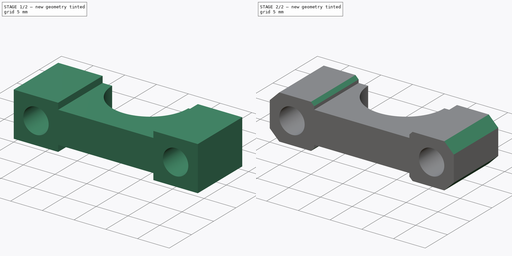
[diagram: build sequence overview — one tinted view per stage of 2, left to right]
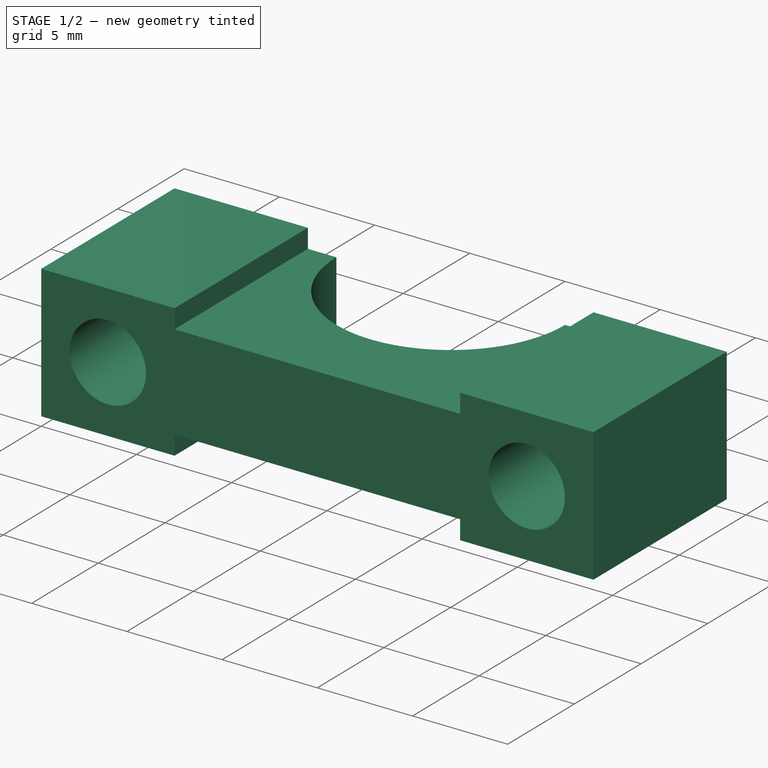
[diagram: stage 1 of 2 — iso view after this stage's code; geometry added in this stage tinted green]
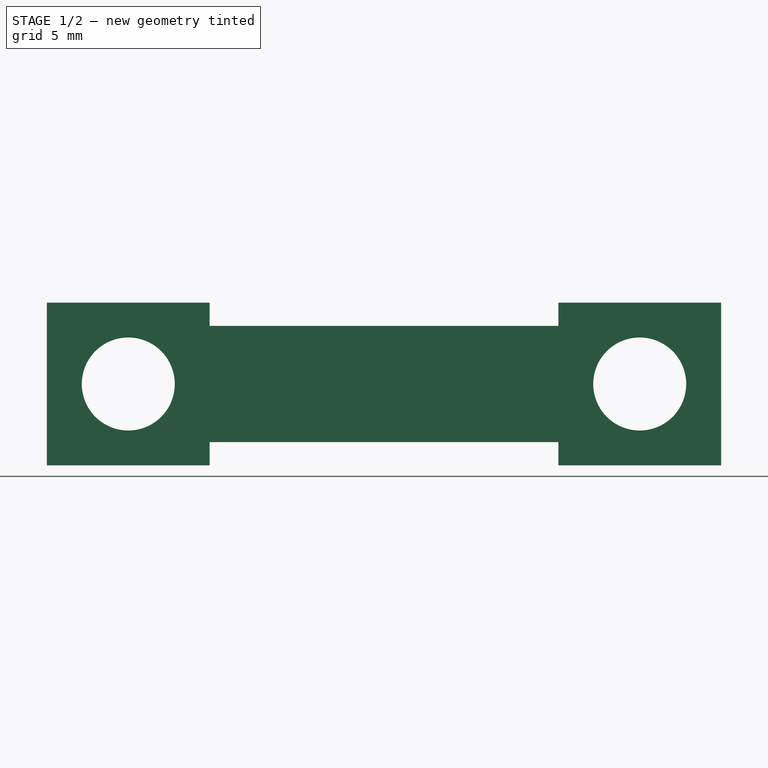
[diagram: stage 1 of 2 — front view after this stage's code; geometry added in this stage tinted green]
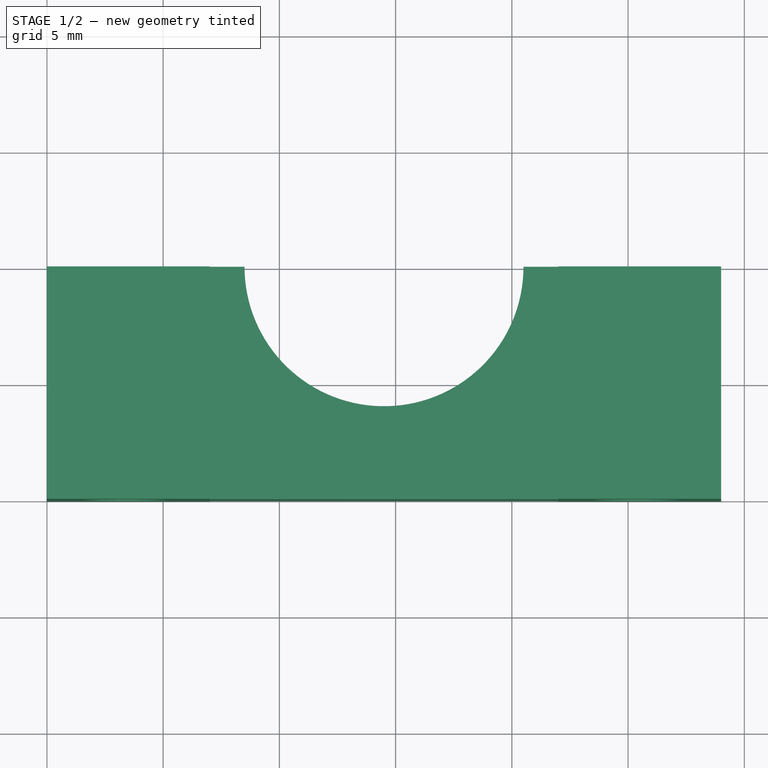
[diagram: stage 1 of 2 — top view after this stage's code; geometry added in this stage tinted green]
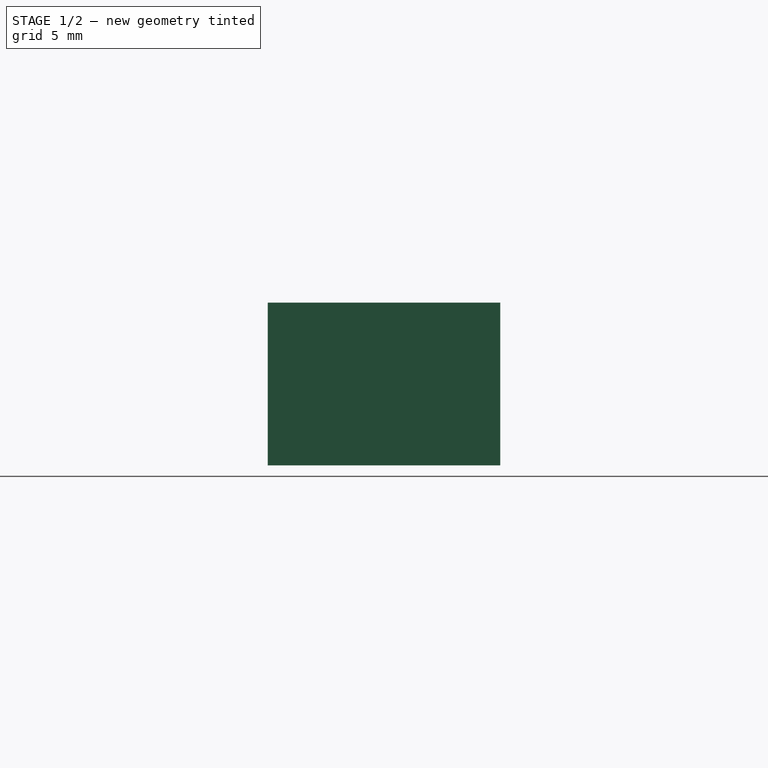
[diagram: stage 1 of 2 — right view after this stage's code; geometry added in this stage tinted green]
FCSTD DOCUMENT  (FreeCAD 0.18R14555 (Git shallow))
Label: top-bowden-mount
License: All rights reserved
LicenseURL: http://en.wikipedia.org/wiki/All_rights_reserved
objects: Sketcher::SketchObject×2, PartDesign::Chamfer×2, PartDesign::Pad×1, PartDesign::Pocket×1, PartDesign::Body×1
note: 9 computed .brp shape members not serialized (recipe doc carries the construction recipe); baked Part::Feature solids carry a one-line shape summary decoded from their .brp

FEATURE [Sketcher::SketchObject] Sketch
  MapMode = 5
  Placement = pos=(0,0,0) rot=(1,0,0;1.5708rad)
  Support = -> [XZ_Plane]
  sketch-geometry (22):
    g0: LineSegment StartX=0 StartY=7 StartZ=0 EndX=0 EndY=0 EndZ=0
    g1: LineSegment StartX=0 StartY=0 StartZ=0 EndX=7 EndY=0 EndZ=0
    g2: LineSegment StartX=7 StartY=0 StartZ=0 EndX=7 EndY=1 EndZ=0
    g3: LineSegment StartX=7 StartY=1 StartZ=0 EndX=22 EndY=1 EndZ=0
    g4: LineSegment StartX=22 StartY=1 StartZ=0 EndX=22 EndY=0 EndZ=0
    g5: LineSegment StartX=22 StartY=0 StartZ=0 EndX=29 EndY=0 EndZ=0
    g6: LineSegment StartX=29 StartY=0 StartZ=0 EndX=29 EndY=7 EndZ=0
    g7: LineSegment StartX=29 StartY=7 StartZ=0 EndX=22 EndY=7 EndZ=0
    g8: LineSegment StartX=22 StartY=7 StartZ=0 EndX=22 EndY=6 EndZ=0
    g9: LineSegment StartX=22 StartY=6 StartZ=0 EndX=7 EndY=6 EndZ=0
    g10: LineSegment StartX=7 StartY=6 StartZ=0 EndX=7 EndY=7 EndZ=0
    g11: LineSegment StartX=7 StartY=7 StartZ=0 EndX=0 EndY=7 EndZ=0
    g12: LineSegment [constr] StartX=7 StartY=7 StartZ=0 EndX=22 EndY=7 EndZ=0
    g13: LineSegment [constr] StartX=7 StartY=0 StartZ=0 EndX=22 EndY=0 EndZ=0
    g14: LineSegment [constr] StartX=22 StartY=1 StartZ=0 EndX=22 EndY=6 EndZ=0
    g15: LineSegment [constr] StartX=7 StartY=1 StartZ=0 EndX=7 EndY=6 EndZ=0
    g16: LineSegment [constr] StartX=0 StartY=7 StartZ=0 EndX=7 EndY=0 EndZ=0
    g17: LineSegment [constr] StartX=0 StartY=0 StartZ=0 EndX=7 EndY=7 EndZ=0
    g18: LineSegment [constr] StartX=22 StartY=7 StartZ=0 EndX=29 EndY=0 EndZ=0
    g19: LineSegment [constr] StartX=29 StartY=7 StartZ=0 EndX=22 EndY=0 EndZ=0
    g20: Circle CenterX=3.5 CenterY=3.5 CenterZ=0 NormalX=0 NormalY=0 NormalZ=1 AngleXU=0 Radius=2
    g21: Circle CenterX=25.5 CenterY=3.5 CenterZ=0 NormalX=0 NormalY=0 NormalZ=1 AngleXU=0 Radius=2
  constraints (57):
    c: Vertical(g0)
    c: Coincident(g0,g1)
    c: Horizontal(g1)
    c: Coincident(g1,g2)
    c: Vertical(g2)
    c: Coincident(g2,g3)
    c: Horizontal(g3)
    c: Coincident(g3,g4)
    c: Vertical(g4)
    c: Coincident(g4,g5)
    c: Horizontal(g5)
    c: Coincident(g5,g6)
    c: Vertical(g6)
    c: Coincident(g6,g7)
    c: Horizontal(g7)
    c: Coincident(g7,g8)
    c: Vertical(g8)
    c: Coincident(g8,g9)
    c: Horizontal(g9)
    c: Coincident(g9,g10)
    c: Vertical(g10)
    c: Coincident(g10,g11)
    c: Coincident(g11,g0)
    c: Horizontal(g11)
    c: Coincident(g12,g10)
    c: Coincident(g12,g7)
    c: Horizontal(g12)
    c: Coincident(g13,g1)
    c: Coincident(g13,g4)
    c: Horizontal(g13)
    c: Equal(g8,g4)
    c: Coincident(g14,g3)
    c: Coincident(g14,g8)
    c: Coincident(g15,g2)
    c: Coincident(g15,g9)
    c: Vertical(g15)
    c: Vertical(g14)
    c: Equal(g11,g7)
    c: Equal(g0,g11)
    c: DistanceY(g15,g15) = 5
    c: Coincident(g16,g0)
    c: Coincident(g16,g1)
    c: Coincident(g17,g0)
    c: Coincident(g17,g10)
    c: Coincident(g18,g7)
    c: Coincident(g19,g6)
    c: Coincident(g19,g4)
    c: Coincident(g18,g5)
    c: PointOnObject(g20,g16)
    c: PointOnObject(g21,g18)
    c: Equal(g21,g20)
    c: PointOnObject(g20,g17)
    c: PointOnObject(g21,g19)
    c: Radius(g20) = 2
    c: DistanceX(g20,g21) = 22
    c: DistanceX(g9,g9) = 15
    c: Coincident(g0,g-1)
FEATURE [PartDesign::Pad] Pad
  Length = 10
  Length2 = 100
  Placement = pos=(0,0,0) rot=(1,0,0;1.5708rad)
  Profile = -> Sketch
  Type = 0
FEATURE [Sketcher::SketchObject] Sketch001
  ExternalGeometry = -> [Pad]
  MapMode = 5
  Placement = pos=(0,4e-15,6) rot=(0,0,1;3.14159rad)
  Support = -> [Pad]
  sketch-geometry (4):
    g0: ArcOfCircle CenterX=-14.5 CenterY=0 CenterZ=0 NormalX=0 NormalY=0 NormalZ=1 AngleXU=0 Radius=6 StartAngle=0 EndAngle=3.14159
    g1: LineSegment [constr] StartX=-14.5 StartY=0 StartZ=0 EndX=-22 EndY=10 EndZ=0
    g2: LineSegment [constr] StartX=-14.5 StartY=0 StartZ=0 EndX=-7 EndY=10 EndZ=0
    g3: LineSegment StartX=-20.5 StartY=7e-16 StartZ=0 EndX=-8.5 EndY=0 EndZ=0
  constraints (11):
    c: Coincident(g1,g0)
    c: Coincident(g1,g-3)
    c: Coincident(g2,g0)
    c: Coincident(g2,g-4)
    c: Equal(g2,g1)
    c: Radius(g0) = 6
    c: PointOnObject(g0,g-5)
    c: PointOnObject(g0,g-5)
    c: PointOnObject(g0,g-5)
    c: Coincident(g3,g0)
    c: Coincident(g3,g0)
FEATURE [PartDesign::Pocket] Pocket
  BaseFeature = -> Pad
  Length = 5
  Length2 = 100
  Placement = pos=(0,0,0) rot=(1,0,0;1.5708rad)
  Profile = -> Sketch001
  Type = 1
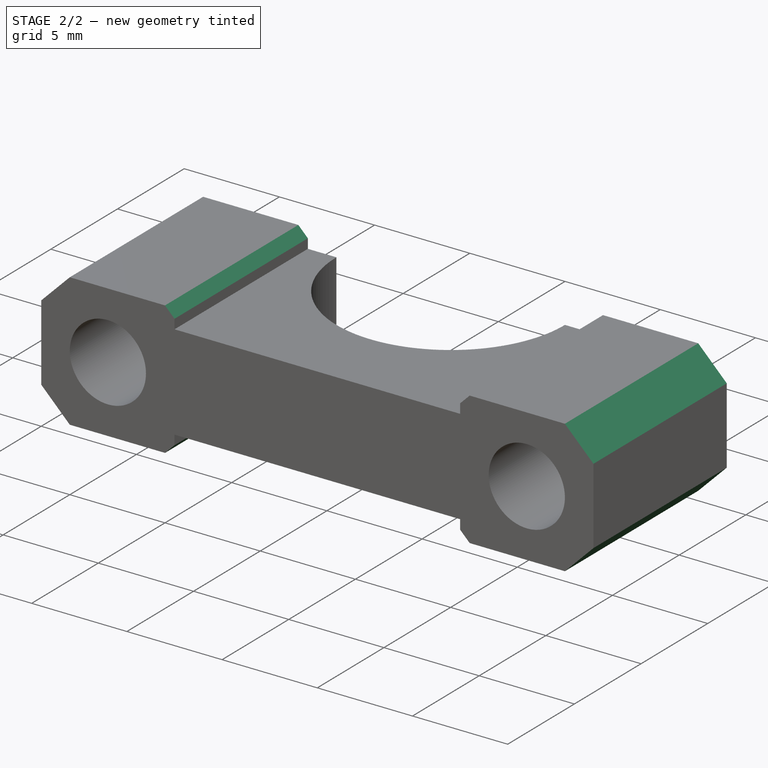
[diagram: stage 2 of 2 — iso view after this stage's code; geometry added in this stage tinted green]
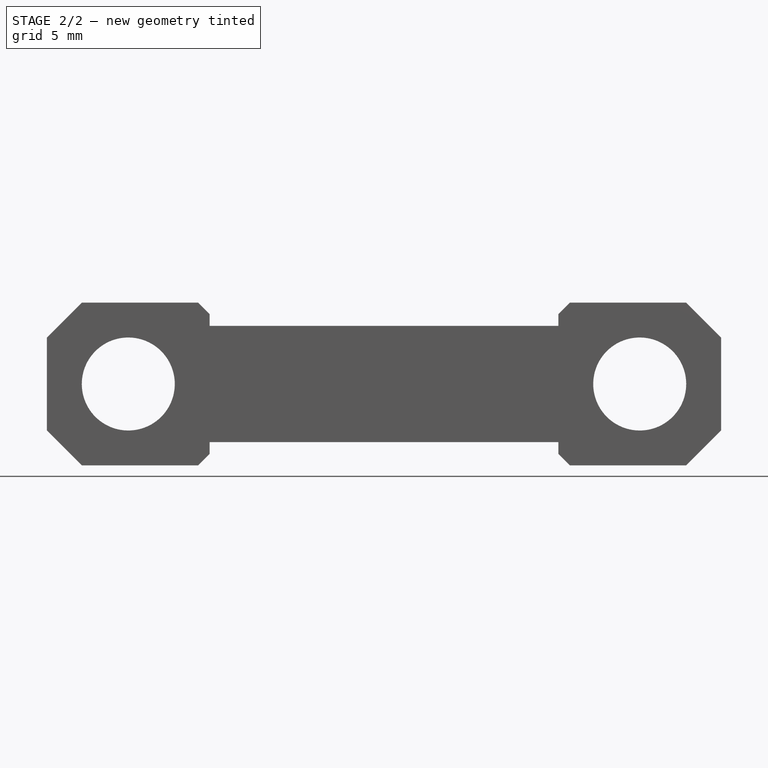
[diagram: stage 2 of 2 — front view after this stage's code; geometry added in this stage tinted green]
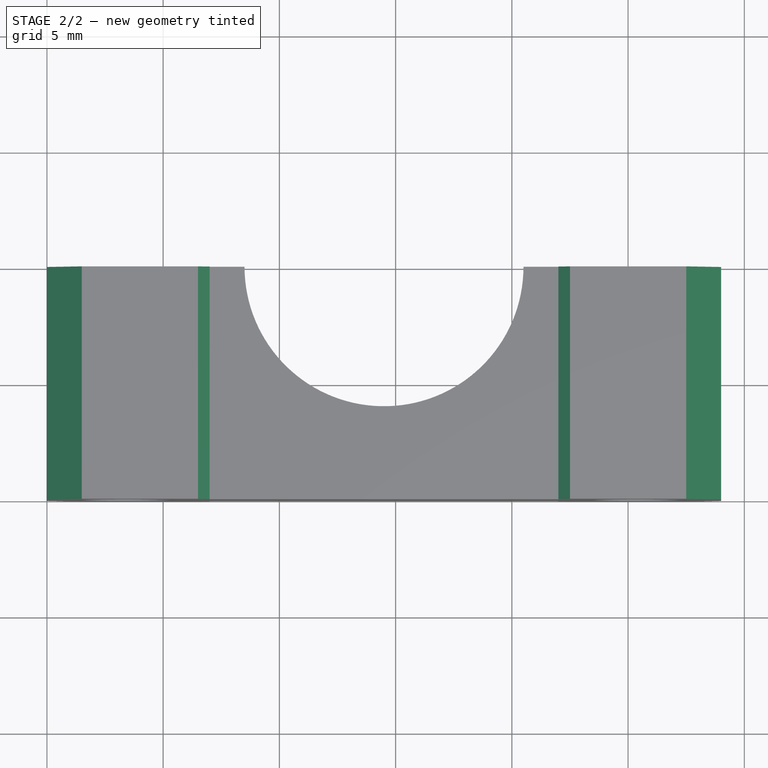
[diagram: stage 2 of 2 — top view after this stage's code; geometry added in this stage tinted green]
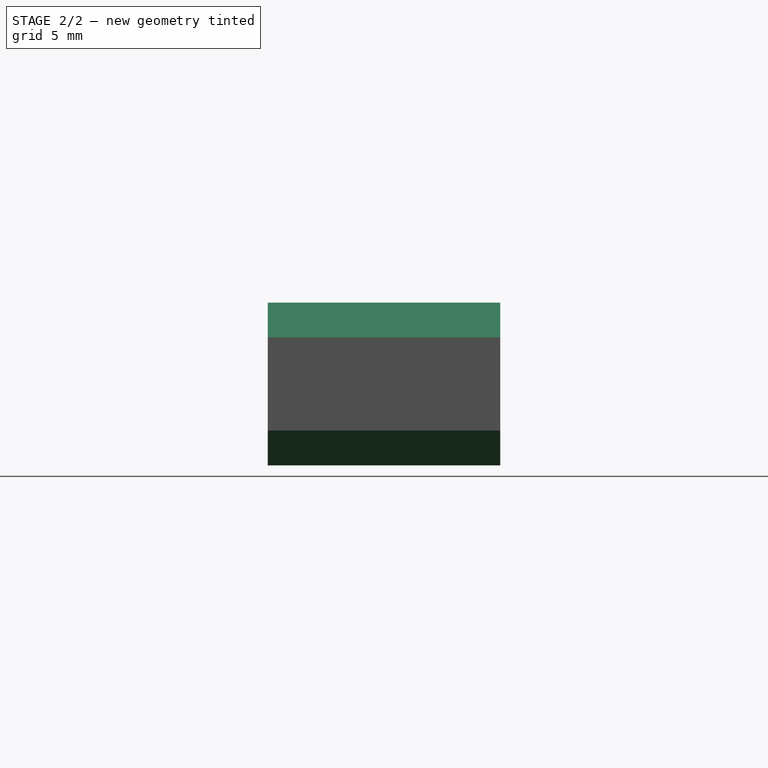
[diagram: stage 2 of 2 — right view after this stage's code; geometry added in this stage tinted green]
FEATURE [PartDesign::Chamfer] Chamfer
  Base = -> Pocket [Edge2,Edge1,Edge40,Edge42]
  BaseFeature = -> Pocket
  Placement = pos=(0,0,0) rot=(1,0,0;1.5708rad)
  Size = 1.5
FEATURE [PartDesign::Chamfer] Chamfer001
  Base = -> Chamfer [Edge34,Edge46,Edge41,Edge48]
  BaseFeature = -> Chamfer
  Placement = pos=(0,0,0) rot=(1,0,0;1.5708rad)
  Size = 0.5
FEATURE [PartDesign::Body] Body
  Group = -> [Sketch,Pad,Sketch001,Pocket,Chamfer,Chamfer001]
  Origin = -> Origin
  Tip = -> Chamfer001
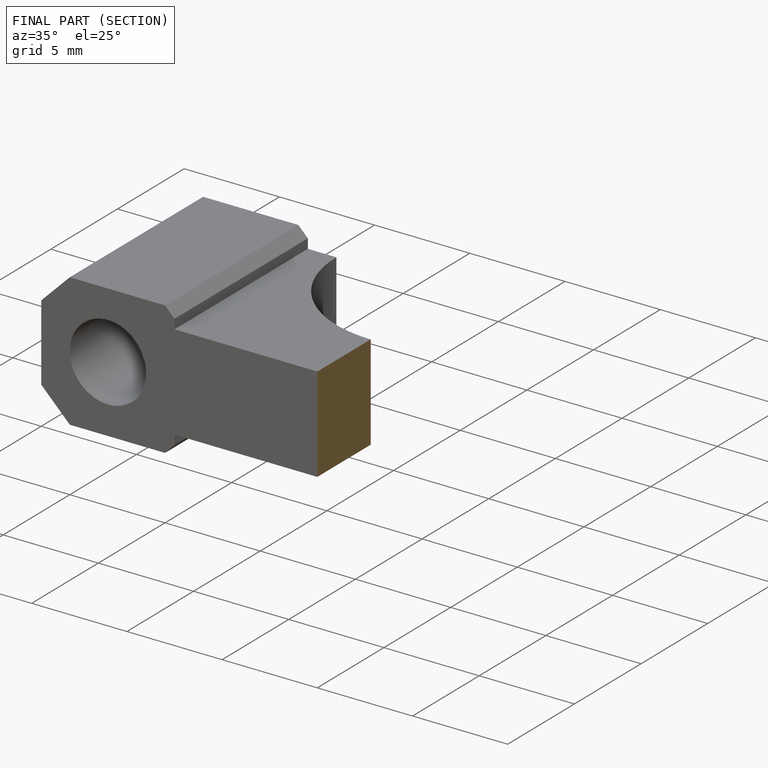
[diagram: finished part — half-section view (interior)]
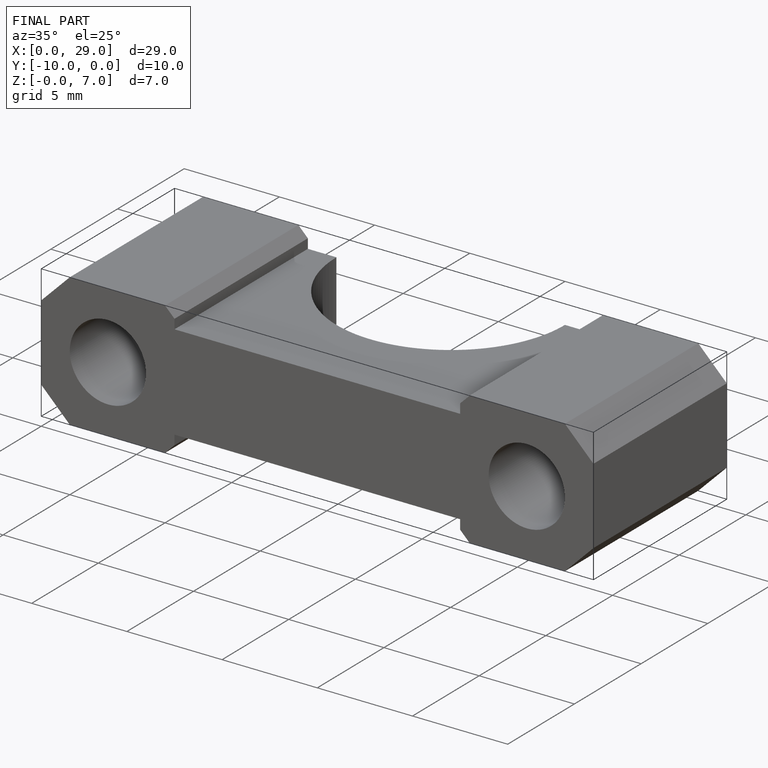
[diagram: finished part — iso view with bounding-box wireframe]
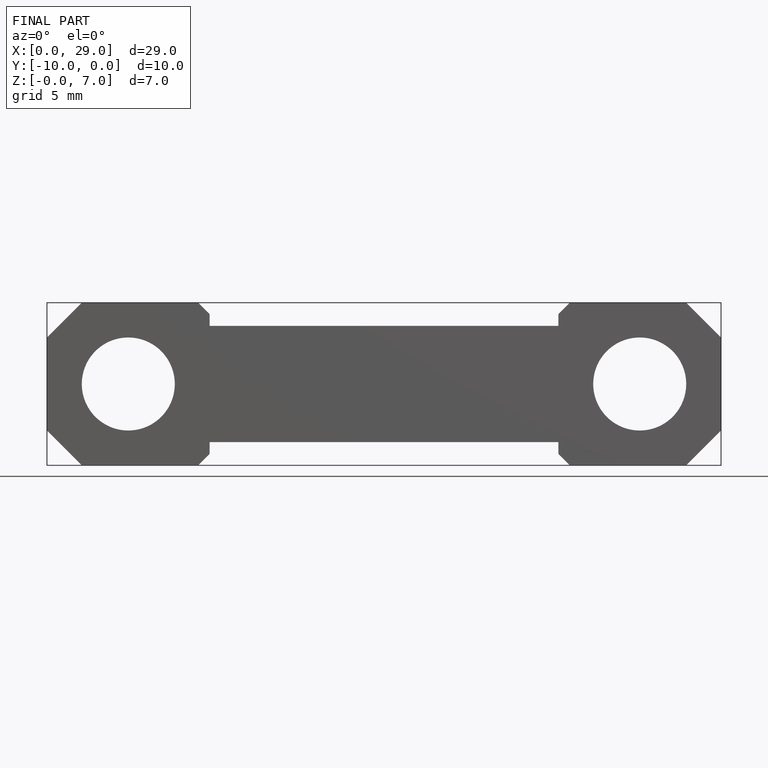
[diagram: finished part — front view with bounding-box wireframe]
